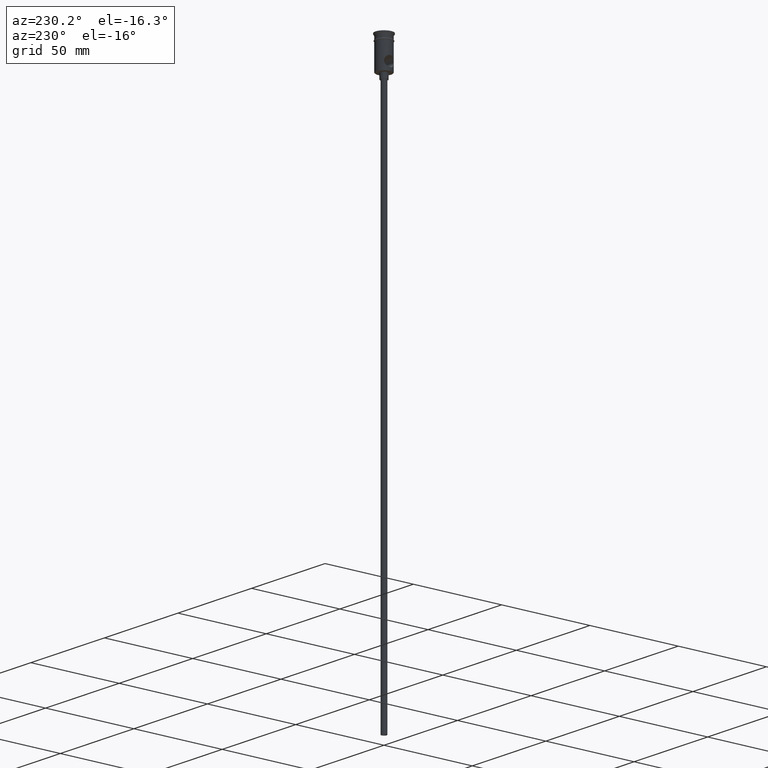
[diagram: clean part render]
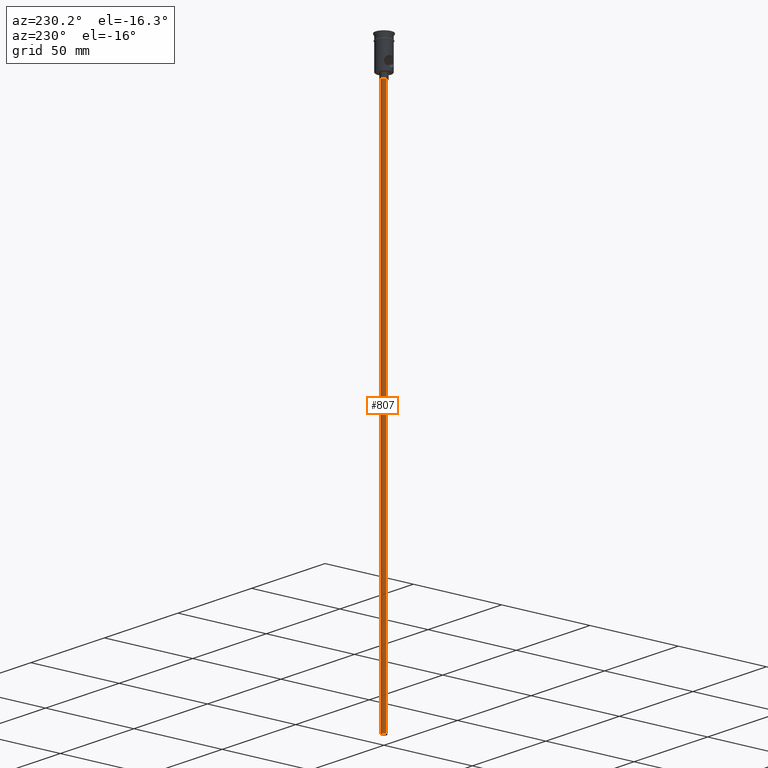
[diagram: same view with one face highlighted and labeled with its STEP entity id]
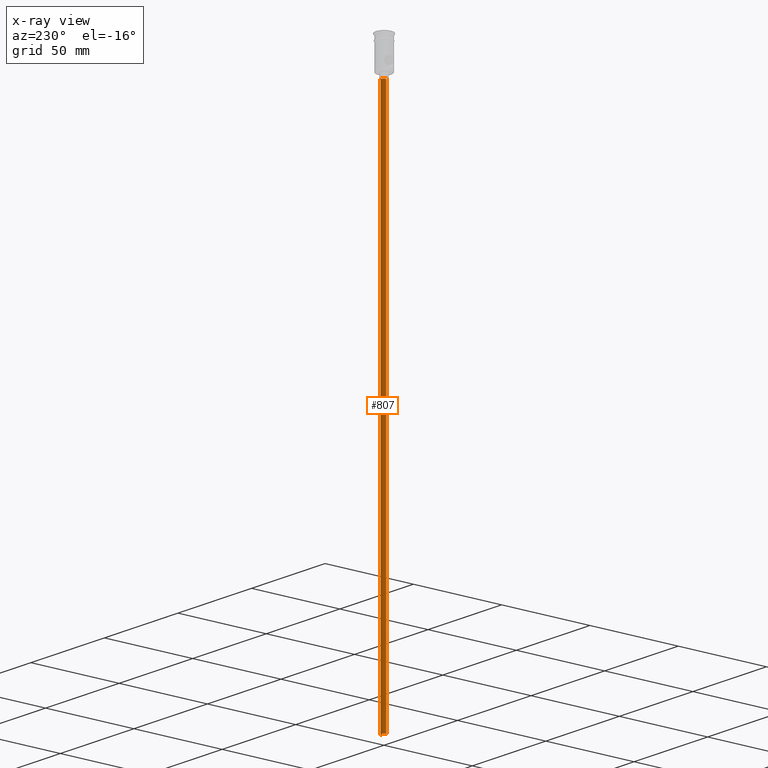
[diagram: x-ray of the same camera — body ghosted, the highlighted face saturated]
A machine part, auxiliary view. The second image highlights one B-rep face of the part: STEP entity #807.
The next image is the same camera in x-ray: the body ghosted, the highlighted face saturated — about 0% of this face is hidden behind the body in this view.
In plain terms, the highlighted cylindrical surface (edge-blend (fillet) strip) has radius 1.5 mm, axis along (-0, -0, 1).
Its self-contained STEP definition (entity closure, byte-faithful):
#7 = EDGE_CURVE ( 'NONE', #901, #788, #913, .T. ) ;
#30 = CARTESIAN_POINT ( 'NONE',  ( 0.000000000000000000, 0.000000000000000000, -20.99999999999999645 ) ) ;
#32 = LINE ( 'NONE', #1305, #168 ) ;
#97 = CYLINDRICAL_SURFACE ( 'NONE', #840, 1.500000000000000222 ) ;
#168 = VECTOR ( 'NONE', #316, 1000.000000000000000 ) ;
#176 = ORIENTED_EDGE ( 'NONE', *, *, #768, .F. ) ;
#224 = EDGE_CURVE ( 'NONE', #1190, #788, #32, .T. ) ;
#316 = DIRECTION ( 'NONE',  ( -0.000000000000000000, -0.000000000000000000, 1.000000000000000000 ) ) ;
#343 = EDGE_CURVE ( 'NONE', #1121, #901, #381, .T. ) ;
#381 = LINE ( 'NONE', #1041, #869 ) ;
#385 = EDGE_LOOP ( 'NONE', ( #176, #1241, #1262, #1148 ) ) ;
#524 = DIRECTION ( 'NONE',  ( -0.000000000000000000, -0.000000000000000000, 1.000000000000000000 ) ) ;
#554 = FACE_OUTER_BOUND ( 'NONE', #385, .T. ) ;
#621 = AXIS2_PLACEMENT_3D ( 'NONE', #930, #1382, #1145 ) ;
#678 = DIRECTION ( 'NONE',  ( 0.000000000000000000, 0.000000000000000000, -1.000000000000000000 ) ) ;
#682 = DIRECTION ( 'NONE',  ( -1.000000000000000000, 0.000000000000000000, 0.000000000000000000 ) ) ;
#702 = CARTESIAN_POINT ( 'NONE',  ( -1.500000000000000222, 1.836970198721030181E-16, -318.0000000000000000 ) ) ;
#753 = CARTESIAN_POINT ( 'NONE',  ( 1.500000000000000222, 0.000000000000000000, -20.99999999999999645 ) ) ;
#768 = EDGE_CURVE ( 'NONE', #1121, #1190, #1420, .T. ) ;
#788 = VERTEX_POINT ( 'NONE', #753 ) ;
#807 = ADVANCED_FACE ( 'NONE', ( #554 ), #97, .T. ) ;
#840 = AXIS2_PLACEMENT_3D ( 'NONE', #1071, #1188, #1438 ) ;
#869 = VECTOR ( 'NONE', #524, 1000.000000000000000 ) ;
#901 = VERTEX_POINT ( 'NONE', #1200 ) ;
#913 = CIRCLE ( 'NONE', #1098, 1.500000000000000222 ) ;
#920 = CARTESIAN_POINT ( 'NONE',  ( 1.500000000000000222, 0.000000000000000000, -318.0000000000000000 ) ) ;
#930 = CARTESIAN_POINT ( 'NONE',  ( 0.000000000000000000, 0.000000000000000000, -318.0000000000000000 ) ) ;
#1041 = CARTESIAN_POINT ( 'NONE',  ( -1.500000000000000222, 1.836970198721030181E-16, -318.0000000000000000 ) ) ;
#1071 = CARTESIAN_POINT ( 'NONE',  ( 0.000000000000000000, 0.000000000000000000, -318.0000000000000000 ) ) ;
#1098 = AXIS2_PLACEMENT_3D ( 'NONE', #30, #678, #682 ) ;
#1121 = VERTEX_POINT ( 'NONE', #702 ) ;
#1145 = DIRECTION ( 'NONE',  ( -1.000000000000000000, 0.000000000000000000, 0.000000000000000000 ) ) ;
#1148 = ORIENTED_EDGE ( 'NONE', *, *, #224, .F. ) ;
#1188 = DIRECTION ( 'NONE',  ( -0.000000000000000000, -0.000000000000000000, 1.000000000000000000 ) ) ;
#1190 = VERTEX_POINT ( 'NONE', #920 ) ;
#1200 = CARTESIAN_POINT ( 'NONE',  ( -1.500000000000000222, 1.836970198721030181E-16, -20.99999999999999645 ) ) ;
#1241 = ORIENTED_EDGE ( 'NONE', *, *, #343, .T. ) ;
#1262 = ORIENTED_EDGE ( 'NONE', *, *, #7, .T. ) ;
#1305 = CARTESIAN_POINT ( 'NONE',  ( 1.500000000000000222, 0.000000000000000000, -318.0000000000000000 ) ) ;
#1382 = DIRECTION ( 'NONE',  ( 0.000000000000000000, 0.000000000000000000, -1.000000000000000000 ) ) ;
#1420 = CIRCLE ( 'NONE', #621, 1.500000000000000222 ) ;
#1438 = DIRECTION ( 'NONE',  ( 1.000000000000000000, 0.000000000000000000, 0.000000000000000000 ) ) ;